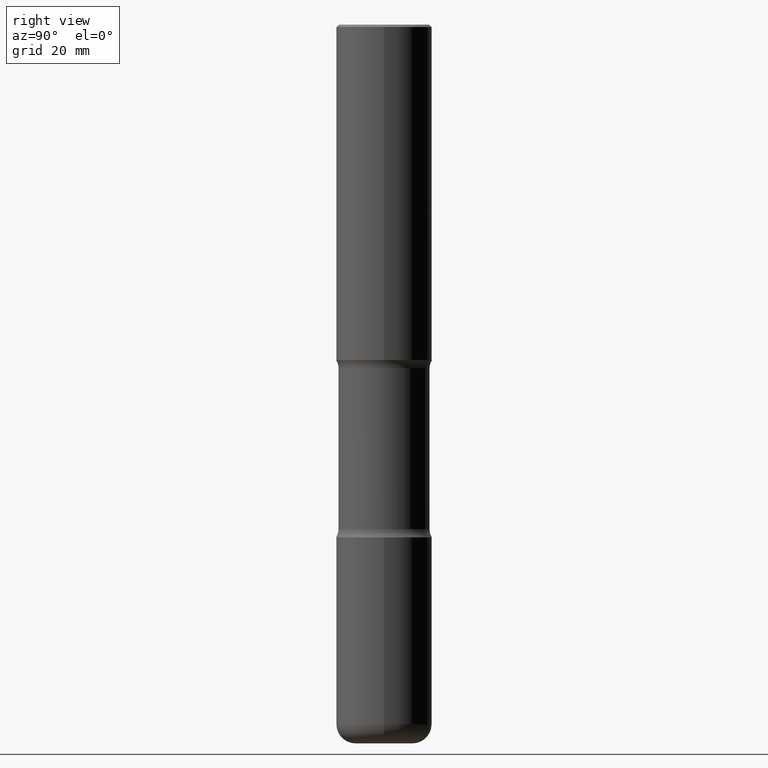
[diagram: clean part render]
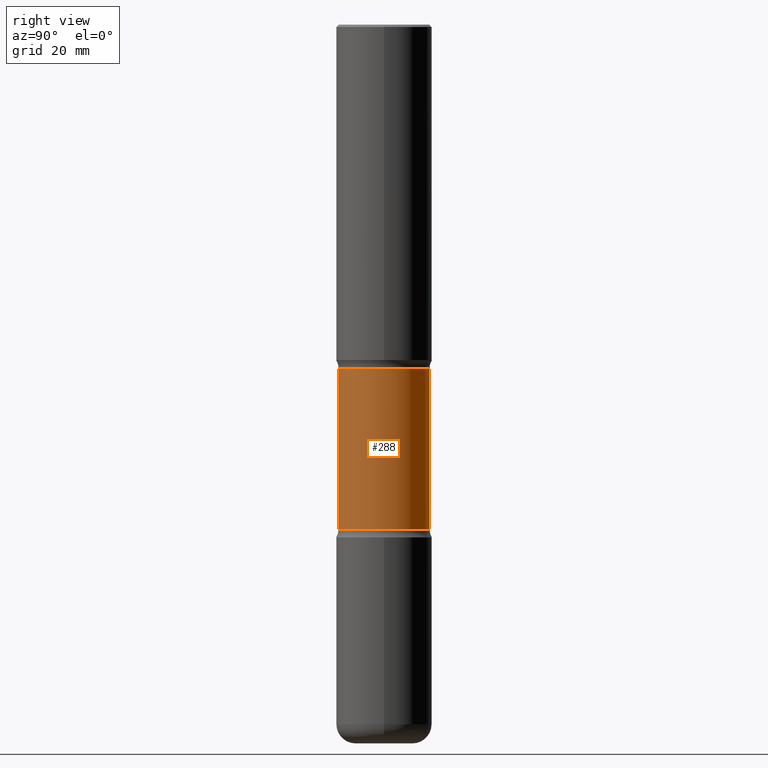
[diagram: same view with one face highlighted and labeled with its STEP entity id]
A machine part, right view. The second image highlights one B-rep face of the part: STEP entity #288.
In plain terms, the highlighted cylindrical surface (partial cylindrical patch) has radius 9.4996 mm, axis along (0, -0, -1).
Its self-contained STEP definition (entity closure, byte-faithful):
#21 = AXIS2_PLACEMENT_3D ( 'NONE', #473, #349, #214 ) ;
#44 = DIRECTION ( 'NONE',  ( 2.499563752616943710E-29, -3.414014296659653741E-15, -1.000000000000000000 ) ) ;
#48 = LINE ( 'NONE', #479, #91 ) ;
#80 = ORIENTED_EDGE ( 'NONE', *, *, #304, .T. ) ;
#83 = FACE_OUTER_BOUND ( 'NONE', #522, .T. ) ;
#91 = VECTOR ( 'NONE', #140, 39.37007874015748143 ) ;
#93 = ORIENTED_EDGE ( 'NONE', *, *, #345, .F. ) ;
#113 = EDGE_CURVE ( 'NONE', #173, #373, #372, .T. ) ;
#121 = CARTESIAN_POINT ( 'NONE',  ( -2.633402156444536217E-15, -0.3740000000000101577, -2.823256588393413313 ) ) ;
#131 = CARTESIAN_POINT ( 'NONE',  ( 2.611628041454766160E-15, 0.3739999999999856772, -4.145243411606584161 ) ) ;
#140 = DIRECTION ( 'NONE',  ( 2.499563752616943710E-29, -3.414014296659653741E-15, -1.000000000000000000 ) ) ;
#170 = CIRCLE ( 'NONE', #230, 0.3740000000000001656 ) ;
#173 = VERTEX_POINT ( 'NONE', #121 ) ;
#176 = ORIENTED_EDGE ( 'NONE', *, *, #113, .T. ) ;
#198 = EDGE_CURVE ( 'NONE', #310, #373, #170, .T. ) ;
#203 = DIRECTION ( 'NONE',  ( 6.982962677686266711E-15, 1.000000000000000000, -2.921762560068729411E-15 ) ) ;
#214 = DIRECTION ( 'NONE',  ( 6.982962677686266711E-15, 1.000000000000000000, -2.921762560068729411E-15 ) ) ;
#223 = CARTESIAN_POINT ( 'NONE',  ( -2.633402156444500718E-15, -0.3740000000000146541, -4.145243411606582384 ) ) ;
#230 = AXIS2_PLACEMENT_3D ( 'NONE', #245, #420, #203 ) ;
#235 = VECTOR ( 'NONE', #543, 39.37007874015748143 ) ;
#245 = CARTESIAN_POINT ( 'NONE',  ( 1.013341980608738414E-28, -1.447825793226129018E-14, -4.145243411606583273 ) ) ;
#288 = ADVANCED_FACE ( 'NONE', ( #83 ), #309, .T. ) ;
#300 = CIRCLE ( 'NONE', #21, 0.3740000000000001656 ) ;
#304 = EDGE_CURVE ( 'NONE', #347, #173, #300, .T. ) ;
#309 = CYLINDRICAL_SURFACE ( 'NONE', #368, 0.3740000000000001656 ) ;
#310 = VERTEX_POINT ( 'NONE', #131 ) ;
#345 = EDGE_CURVE ( 'NONE', #347, #310, #48, .T. ) ;
#347 = VERTEX_POINT ( 'NONE', #351 ) ;
#349 = DIRECTION ( 'NONE',  ( 2.499563752616943710E-29, -3.414014296659653741E-15, -1.000000000000000000 ) ) ;
#351 = CARTESIAN_POINT ( 'NONE',  ( 2.611628041454733028E-15, 0.3739999999999901736, -2.823256588393415534 ) ) ;
#368 = AXIS2_PLACEMENT_3D ( 'NONE', #559, #44, #435 ) ;
#372 = LINE ( 'NONE', #463, #235 ) ;
#373 = VERTEX_POINT ( 'NONE', #223 ) ;
#420 = DIRECTION ( 'NONE',  ( 2.499563752616943710E-29, -3.414014296659653741E-15, -1.000000000000000000 ) ) ;
#435 = DIRECTION ( 'NONE',  ( 6.982962677686266711E-15, 1.000000000000000000, -2.921762560068729411E-15 ) ) ;
#463 = CARTESIAN_POINT ( 'NONE',  ( -2.565826251166408560E-15, -0.3740000000000206493, -5.905499999999997307 ) ) ;
#473 = CARTESIAN_POINT ( 'NONE',  ( 6.829029461346524548E-29, -9.964976017815853586E-15, -2.823256588393414646 ) ) ;
#479 = CARTESIAN_POINT ( 'NONE',  ( 2.611628041454809941E-15, 0.3739999999999796820, -5.905499999999999972 ) ) ;
#522 = EDGE_LOOP ( 'NONE', ( #80, #176, #527, #93 ) ) ;
#527 = ORIENTED_EDGE ( 'NONE', *, *, #198, .F. ) ;
#543 = DIRECTION ( 'NONE',  ( 2.499563752616943710E-29, -3.414014296659653741E-15, -1.000000000000000000 ) ) ;
#559 = CARTESIAN_POINT ( 'NONE',  ( 1.453329336974072664E-28, -2.048779909082575425E-14, -5.905499999999998195 ) ) ;